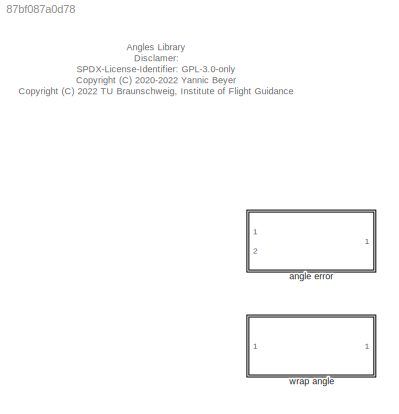
MODEL slx_87bf087a0d78
KIND library
CONFIG AbsTol = auto
CONFIG EnableMultiTasking = off
CONFIG FixedStep = auto
CONFIG MaxStep = auto
CONFIG MinStep = auto
CONFIG RelTol = 1e-3
CONFIG SampleTimeConstraint = Unconstrained
CONFIG Solver = VariableStepAuto
CONFIG SolverName = VariableStepAuto
CONFIG StartTime = 0.0
CONFIG StopTime = 10.0
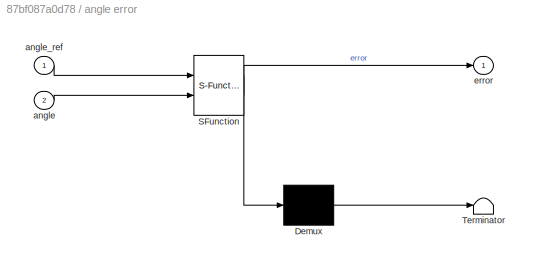
BLOCK [SubSystem] angle error
  ErrorFcn = Stateflow.Translate.translate
  PermitHierarchicalResolution = ExplicitOnly
  Ports = [2, 1]
  RequestExecContextInheritance = off
  SFBlockType = MATLAB Function
  TreatAsAtomicUnit = on
BLOCK [Demux] angle error/ Demux 
  Outputs = 1
  Ports = [1, 1]
BLOCK [S-Function] angle error/ SFunction 
  EnableBusSupport = off
  FunctionName = sf_sfun
  PortCounts = [2 2]
  Ports = [2, 2]
  SFcnIsStateOwnerBlock = off
  SFunctionDeploymentMode = off
  Tag = Stateflow S-Function angles_lib 2
BLOCK [Terminator] angle error/ Terminator 
BLOCK [Inport] angle error/angle
  IconDisplay = Port number
  Port = 2
BLOCK [Inport] angle error/angle_ref
  IconDisplay = Port number
BLOCK [Outport] angle error/error
  IconDisplay = Port number
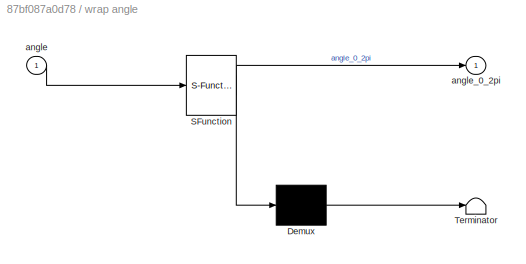
BLOCK [SubSystem] wrap angle
  ErrorFcn = Stateflow.Translate.translate
  PermitHierarchicalResolution = ExplicitOnly
  Ports = [1, 1]
  RequestExecContextInheritance = off
  SFBlockType = MATLAB Function
  TreatAsAtomicUnit = on
BLOCK [Demux] wrap angle/ Demux 
  Outputs = 1
  Ports = [1, 1]
BLOCK [S-Function] wrap angle/ SFunction 
  EnableBusSupport = off
  FunctionName = sf_sfun
  PortCounts = [1 2]
  Ports = [1, 2]
  SFcnIsStateOwnerBlock = off
  SFunctionDeploymentMode = off
  Tag = Stateflow S-Function angles_lib 1
BLOCK [Terminator] wrap angle/ Terminator 
BLOCK [Inport] wrap angle/angle
  IconDisplay = Port number
BLOCK [Outport] wrap angle/angle_0_2pi
  IconDisplay = Port number
ANNOTATION (root): Angles Library Disclamer: SPDX-License-Identifier: GPL-3.0-only <copyright redacted>
CHART wrap angle states=1 transitions=1
  STATE_LABEL 'eML_blk_kernel()'
  STATE_LABEL 'SCRIPT:\nfunction angle_0_2pi = fcn(angle) %#codegen\nangle_0_2pi = wrapAngle(angle);\nend'
CHART angle error states=1 transitions=1
  STATE_LABEL 'eML_blk_kernel()'
  STATE_LABEL 'SCRIPT:\nfunction error = fcn(angle_ref,angle) %#codegen\nerror = errorAngle(angle_ref,angle);\nend\n'
